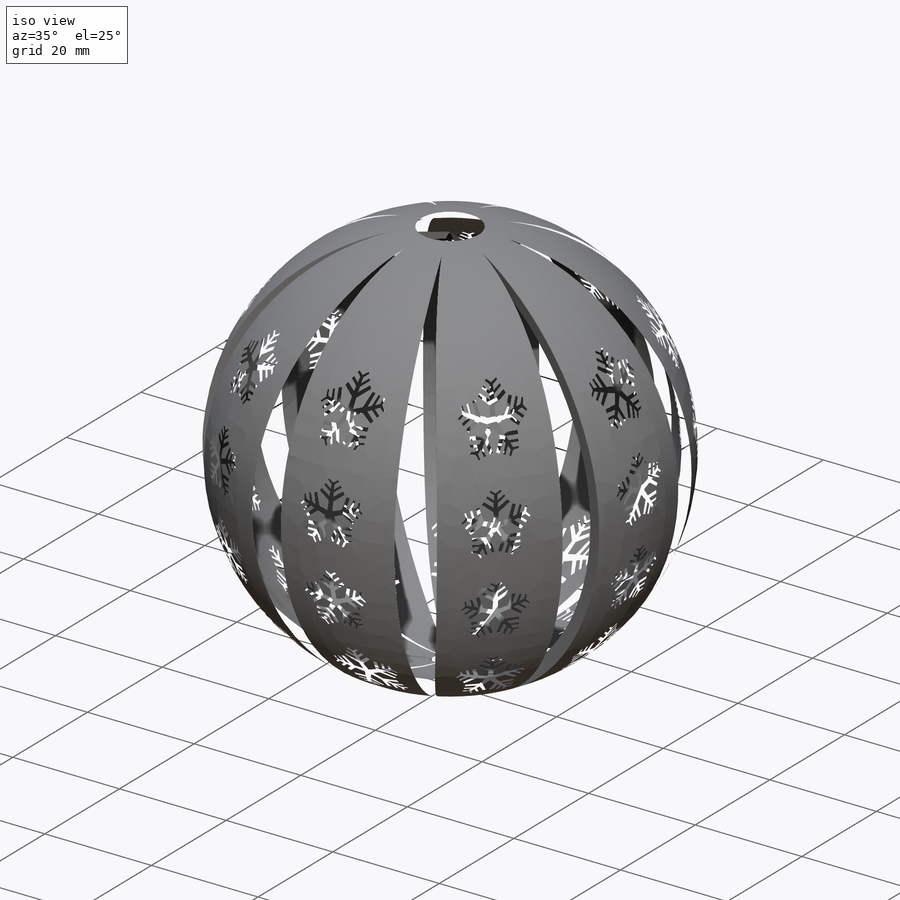
[diagram: iso view]
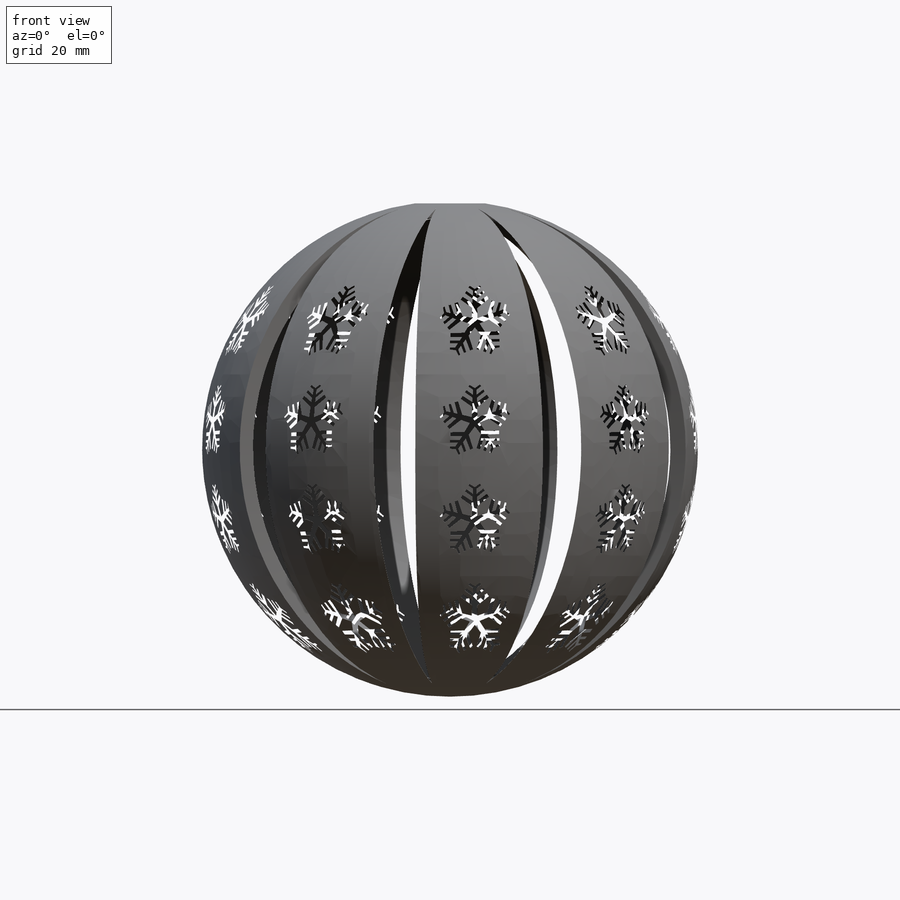
[diagram: front view]
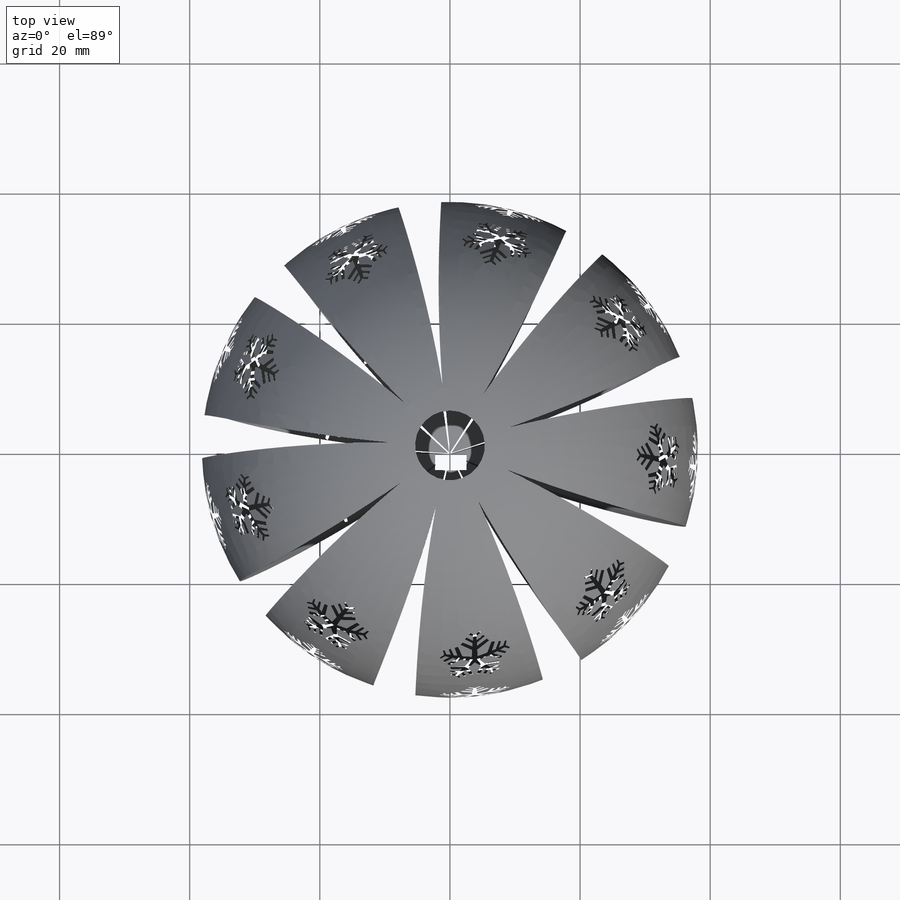
[diagram: top view]
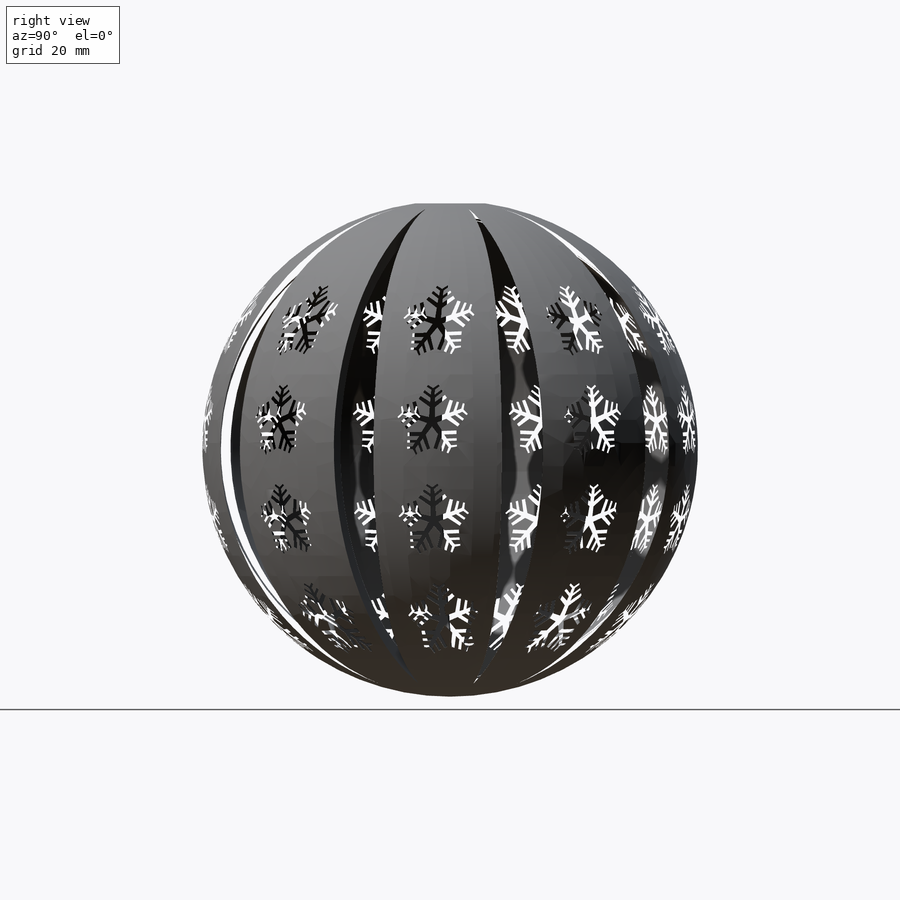
[diagram: right view]
SOLIDWORKS PART (.sldprt)
format: sldprt  version: not decoded by parser v0  size: 7,876,608 bytes
history: native  units: mm
features: sketch x7, plane x3, shell x2, cut_extrude x2, pattern_circular x2, extrude x2, fillet x2, material x1, revolve x1, pattern_linear x1, sweep x1 (+13 scaffold rows collapsed)
feature tree (37):
  scaffold x13  (default folders/planes/origin — collapsed)
  material  "Material <not specified>"
  sketch  "Sketch1"  dims[D1=38.1mm]
  revolve  "Revolve1"  Angle=360deg
  shell  "Shell1"  Thickness=2.54mm
  plane  "Plane1"  Offset=0mm
  sketch  "Sketch3"  dims[c1.D3=71.12mm c1.D1=~9.889935mm c1.D2=~2.496391mm c2.D3=~13.205632mm c2.D4=~10.762299mm c2.D5=~11.614578mm c2.D6=~7.358618mm c2.D7=~15.05586mm c2.D1=~0.304153mm c2.D2=~0.909921mm c3.D3=~0.926445mm c3.D4=~1.335569mm c3.D2=~0.813569mm c4.D3=~0.580633mm c4.D4=~58.241559mm c5.D4=135.0deg c5.D5=~0.790052mm c6.D4=15.24mm c6.D6=90.0deg c7.D6=15.24mm c8.D6=90.0deg c8.D4=~50.721818mm c9.D4=45.0deg c9.D6=90.0deg c9.D7=15.24mm]
  shell  "Axis4"  [1 undecoded]
  cut_extrude  "Cut-Extrude6"  [1 undecoded]
  pattern_linear  "LPattern6"  Count1=3 Count2=2 Spacing1=15.24mm Spacing2=15.24mm
  pattern_circular  "CirPattern4"  Count=9 Angle=360deg
  sketch  "Sketch11"
  plane  "Plane2"
  sketch  "Sketch12"  dims[c1.D1=~124.683134mm c1.D4=~124.683134mm c1.D3=203.2mm c2.D4=203.2mm c2.D2=~36.898763mm c2.D3=~72.981313mm c2.D1=~36.08255mm c3.D4=~9.134217mm]
  cut_extrude  "Cut-Extrude7"  [1 undecoded]
  pattern_circular  "CirPattern5"  Count=10 Angle=40deg
  extrude  "Boss-Extrude1"  Depth=2.54mm
  plane  "Plane3"  Offset=38.1mm
  sketch  "Sketch13"  dims[D1=6.35mm]
  extrude  "Boss-Extrude2"  Depth=6.35mm
  fillet  "Fillet2"  Radius=2.54mm
  sketch  "Sketch14"  dims[D1=6.35mm D2=47.625mm]
  sketch  "Sketch15"  dims[D1=1.27mm D2=~0.151965mm]
  sweep  "Sweep1"
  fillet  "Fillet3"  Radius=0.508mm
decode coverage: 15 of 20 modeling features carry decoded parameters
note: ~ marks probable driven/reference dimensions
note: 3 parameter values undecoded
summary: no parameter record found for 3 features
note: suppression state not decoded; provenance and decode notes live in map.json
